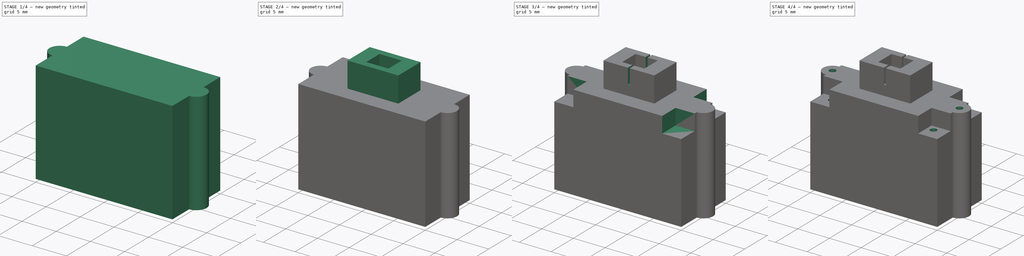
[diagram: build sequence overview — one tinted view per stage of 4, left to right]
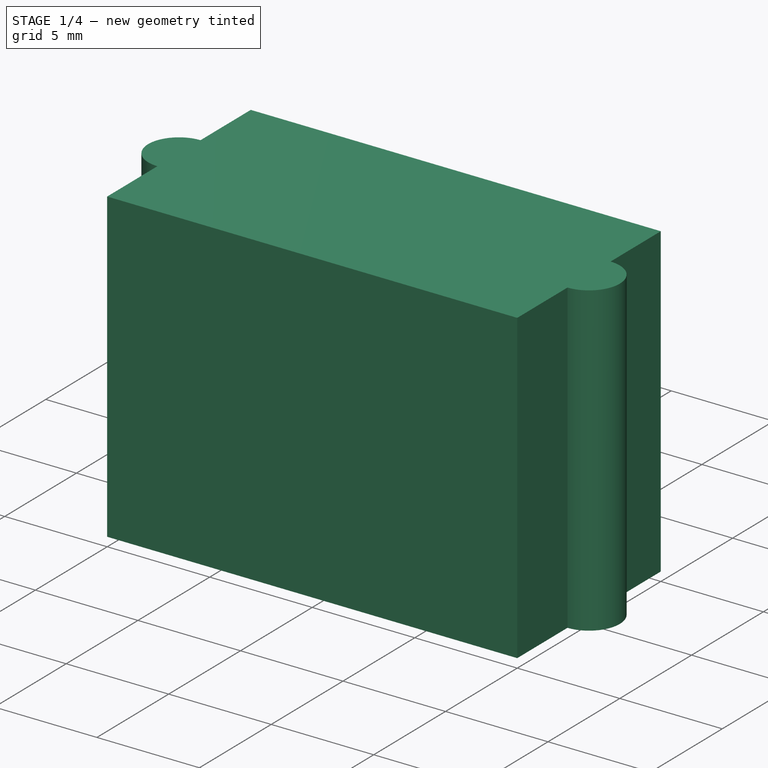
[diagram: stage 1 of 4 — iso view after this stage's code; geometry added in this stage tinted green]
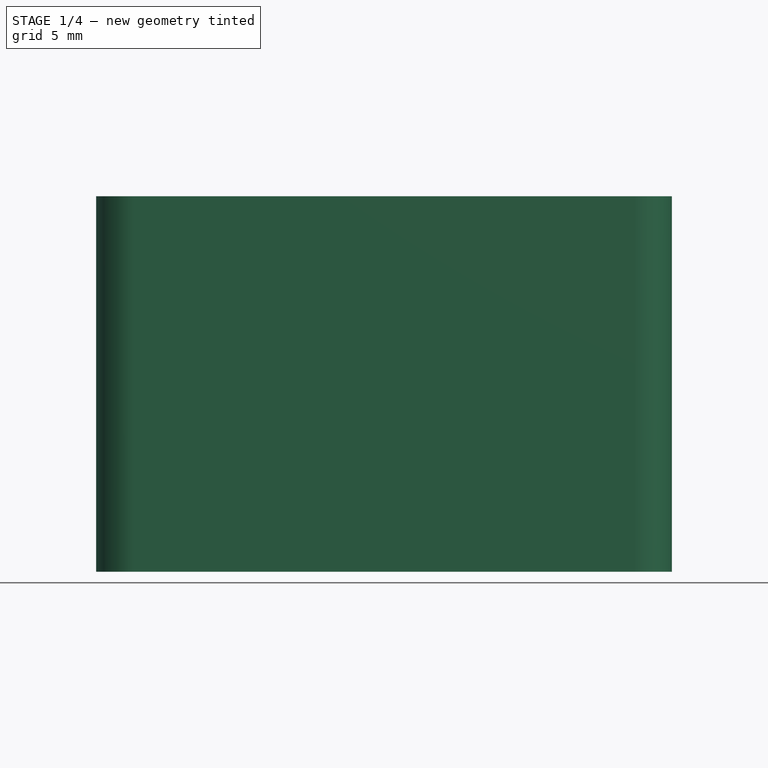
[diagram: stage 1 of 4 — front view after this stage's code; geometry added in this stage tinted green]
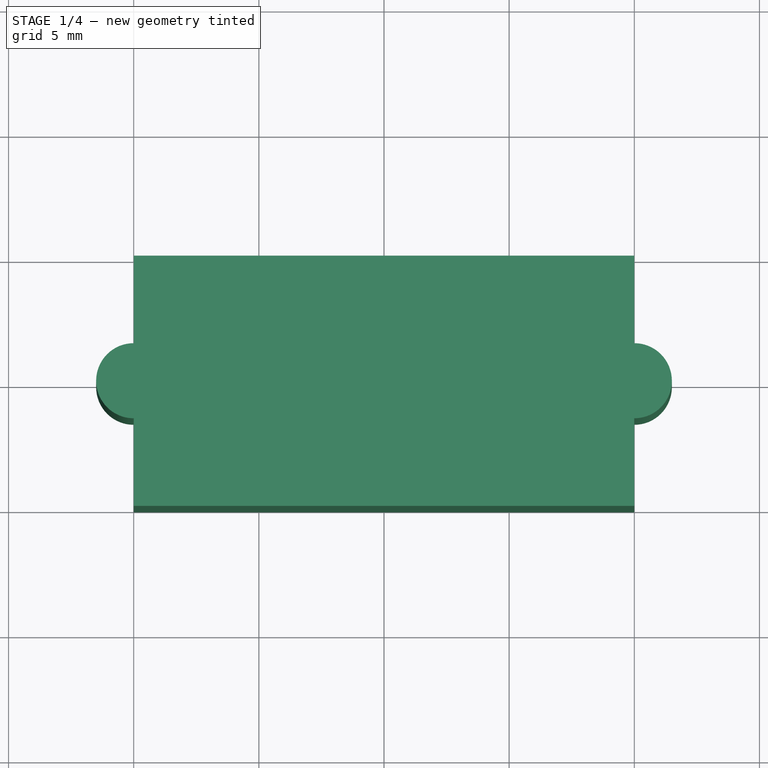
[diagram: stage 1 of 4 — top view after this stage's code; geometry added in this stage tinted green]
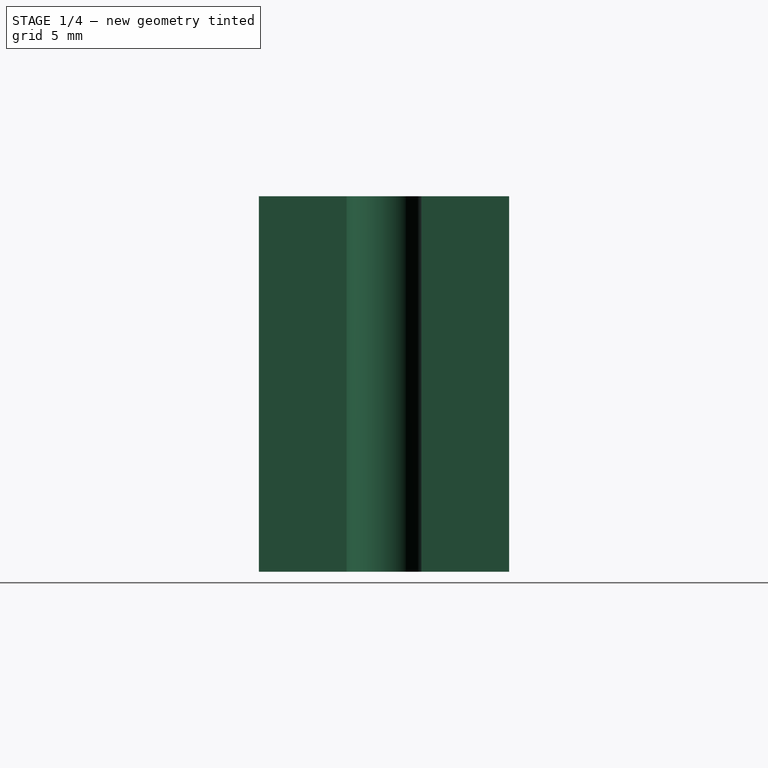
[diagram: stage 1 of 4 — right view after this stage's code; geometry added in this stage tinted green]
FCSTD DOCUMENT  (FreeCAD 0.20R29177 +233 (Git))
Label: shell_chamb12
License: All rights reserved
LicenseURL: http://en.wikipedia.org/wiki/All_rights_reserved
objects: Sketcher::SketchObject×12, PartDesign::Pocket×8, PartDesign::Pad×4, Spreadsheet::Sheet×1, PartDesign::Body×1
note: 37 computed .brp shape members not serialized (recipe doc carries the construction recipe); baked Part::Feature solids carry a one-line shape summary decoded from their .brp

FEATURE [Spreadsheet::Sheet] Spreadsheet001  label="cover_vk_chamb"
  cells = B2=new ; C2=dimensions; D2= of the vacuum; E2=chamber; E3=in; F3=fix piston; B4=chamber ; C4= length; D4(ch_ln)=20; E4(ch_ln_in)=18; G4=shift; H4(fix_sh)=1; C5=height; D5(ch_h)=15; E5(ch_h_in)=14; G5=length; H5(fix_ln)=3; C6= width; D6(ch_w)=10; E6(ch_w_in)=8; G6=width; H6(fix_w)=3; G7=deep; H7(fix_d)=2.5; G8=holl; H8(fix_h)=0.5; B9=plase; C9=height; D9(pl_h)=2; G9=stair; H9(fix_str)=3; G10=str_h; H10(fix_strh)=3.5; D11=d; C12=rod; D12(pl_r)=1; C13=fix; D13(pl_fix)=2; C14=shift; D14(pl_sh)=2.5; B15=nich for pin; C15=d; D15(pin_r)=2; C16=dip; D16(pin_h)=1; F16=pcb foot; G16=rad; H16(pcb_r)=1; G17=h; H17(pcb_h)=1; B18=fix foot; C18=ln; D18(fix_ftln)=8; C19=w; D19(fix_ftw)=5; C20=d blt; D20(fix_ftd)=3; F20=wire hole; G20=rad; H20(wire_r)=0.5; C21=w in; D21(fix_ftw2)=3.5; G21=x; H21(wire_x)=4.5; G22=y; H22(wire_y)=1.5; G23=x1; H23(wire_x1)=4.3
FEATURE [Sketcher::SketchObject] Sketch  label="cover_shll"
  FullyConstrained = false
  MapMode = 5
  Support = -> [XY_Plane]
  expr: Constraints[8] = Spreadsheet001.ch_ln
  expr: Constraints[9] = Spreadsheet001.ch_w
  sketch-geometry (9):
    g0: LineSegment StartX=-10 StartY=5 StartZ=0 EndX=10 EndY=5 EndZ=0
    g1: LineSegment StartX=10 StartY=5 StartZ=0 EndX=10 EndY=1.5 EndZ=0
    g2: LineSegment StartX=10 StartY=-5 StartZ=0 EndX=-10 EndY=-5 EndZ=0
    g3: LineSegment StartX=-10 StartY=-5 StartZ=0 EndX=-10 EndY=-1.5 EndZ=0
    g4: GeomPoint X=10 Y=0 Z=0
    g5: ArcOfCircle CenterX=10 CenterY=0 CenterZ=0 NormalX=0 NormalY=0 NormalZ=1 AngleXU=0 Radius=1.5 StartAngle=4.71239 EndAngle=7.85398
    g6: ArcOfCircle CenterX=-10 CenterY=0 CenterZ=0 NormalX=0 NormalY=0 NormalZ=1 AngleXU=0 Radius=1.5 StartAngle=1.5708 EndAngle=4.71239
    g7: LineSegment StartX=-10 StartY=1.5 StartZ=0 EndX=-10 EndY=5 EndZ=0
    g8: LineSegment StartX=10 StartY=-1.5 StartZ=0 EndX=10 EndY=-5 EndZ=0
  constraints (22):
    c: Coincident(g0,g1)
    c: Coincident(g8,g2)
    c: Coincident(g2,g3)
    c: Coincident(g7,g0)
    c: Horizontal(g0)
    c: Horizontal(g2)
    c: Vertical(g1)
    c: Vertical(g3)
    c: DistanceX(g0,g0) = 20
    c: DistanceY(g8,g1) = 10
    c: Symmetric(g0,g8,g-1)
    c: PointOnObject(g4,g1)
    c: PointOnObject(g4,g-1)
    c: Coincident(g5,g4)
    c: Diameter(g5) = 3
    c: PointOnObject(g6,g3)
    c: PointOnObject(g6,g-1)
    c: Diameter(g6) = 3
    c: Coincident(g3,g6)
    c: Coincident(g7,g6)
    c: Coincident(g1,g5)
    c: Coincident(g8,g5)
FEATURE [PartDesign::Pad] Pad  label="cover"
  Direction = (0,0,1)
  Length = 15
  Length2 = 100
  Profile = -> Sketch
  Type = 0
  expr: Length = Spreadsheet001.ch_h
FEATURE [Sketcher::SketchObject] Sketch001  label="ch_in"
  FullyConstrained = true
  MapMode = 5
  Placement = pos=(0,0,0) rot=(1,0,0;3.14159rad)
  Support = -> [Pad]
  expr: Constraints[8] = Spreadsheet001.ch_ln_in
  expr: Constraints[9] = Spreadsheet001.ch_w_in
  sketch-geometry (4):
    g0: LineSegment StartX=-9 StartY=4 StartZ=0 EndX=9 EndY=4 EndZ=0
    g1: LineSegment StartX=9 StartY=4 StartZ=0 EndX=9 EndY=-4 EndZ=0
    g2: LineSegment StartX=9 StartY=-4 StartZ=0 EndX=-9 EndY=-4 EndZ=0
    g3: LineSegment StartX=-9 StartY=-4 StartZ=0 EndX=-9 EndY=4 EndZ=0
  constraints (11):
    c: Coincident(g0,g1)
    c: Coincident(g1,g2)
    c: Coincident(g2,g3)
    c: Coincident(g3,g0)
    c: Horizontal(g0)
    c: Horizontal(g2)
    c: Vertical(g1)
    c: Vertical(g3)
    c: DistanceX(g0,g0) = 18
    c: DistanceY(g1,g1) = 8
    c: Symmetric(g0,g1,g-1)
FEATURE [PartDesign::Pocket] Pocket  label="chamb_in"
  BaseFeature = -> Pad
  Direction = (0,0,1)
  Length = 14
  Length2 = 5
  Profile = -> Sketch001
  ReferenceAxis = -> Sketch001 [N_Axis]
  Type = 0
  expr: Length = Spreadsheet001.ch_h_in
FEATURE [Sketcher::SketchObject] Sketch002  label="fix_mg"
  FullyConstrained = true
  MapMode = 5
  Placement = pos=(0,0,14) rot=(1,0,0;3.14159rad)
  Support = -> [Pocket]
  expr: Constraints[2] = Spreadsheet001.pl_fix
  expr: Constraints[3] = Spreadsheet001.pl_fix
  expr: Constraints[4] = Spreadsheet001.pl_sh
  expr: Constraints[5] = Spreadsheet001.pl_sh
  sketch-geometry (2):
    g0: Circle CenterX=-2.5 CenterY=0 CenterZ=0 NormalX=0 NormalY=0 NormalZ=1 AngleXU=0 Radius=1
    g1: Circle CenterX=2.5 CenterY=0 CenterZ=0 NormalX=0 NormalY=0 NormalZ=1 AngleXU=0 Radius=1
  constraints (6):
    c: PointOnObject(g0,g-1)
    c: PointOnObject(g1,g-1)
    c: Diameter(g0) = 2
    c: Diameter(g1) = 2
    c: Distance(g-1,g0) = 2.5
    c: Distance(g1,g-1) = 2.5
FEATURE [PartDesign::Pad] Pad001  label="fix"
  BaseFeature = -> Pocket
  Direction = (0,0,-1)
  Length = 2
  Length2 = 10
  Profile = -> Sketch002
  ReferenceAxis = -> Sketch002 [N_Axis]
  Type = 0
  expr: Length = Spreadsheet001.pl_h
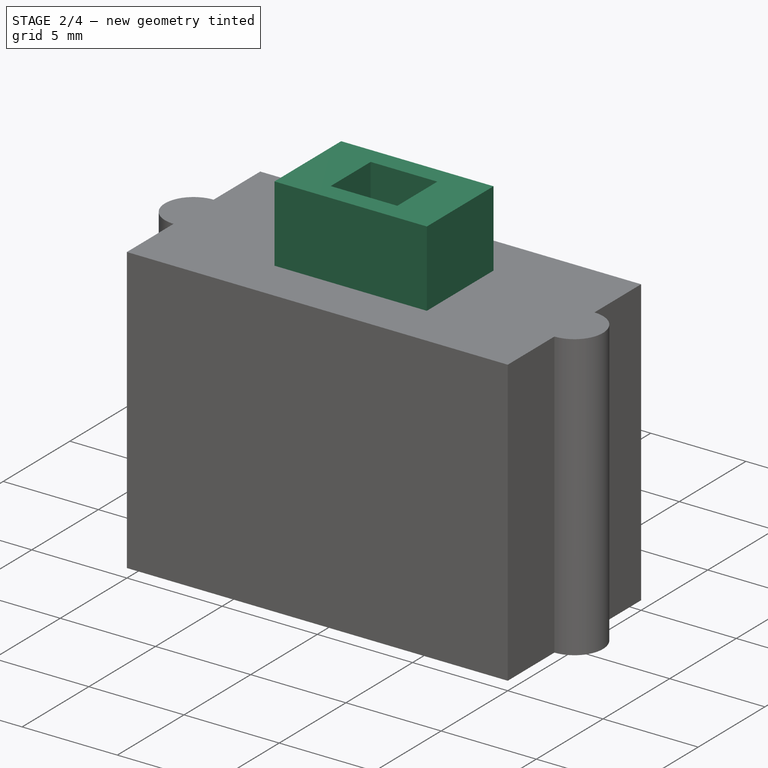
[diagram: stage 2 of 4 — iso view after this stage's code; geometry added in this stage tinted green]
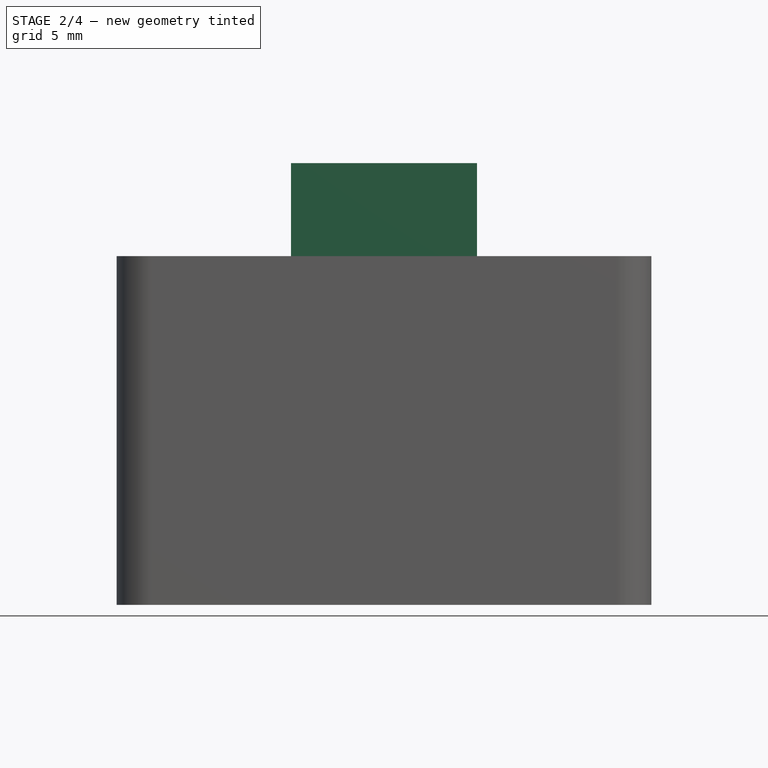
[diagram: stage 2 of 4 — front view after this stage's code; geometry added in this stage tinted green]
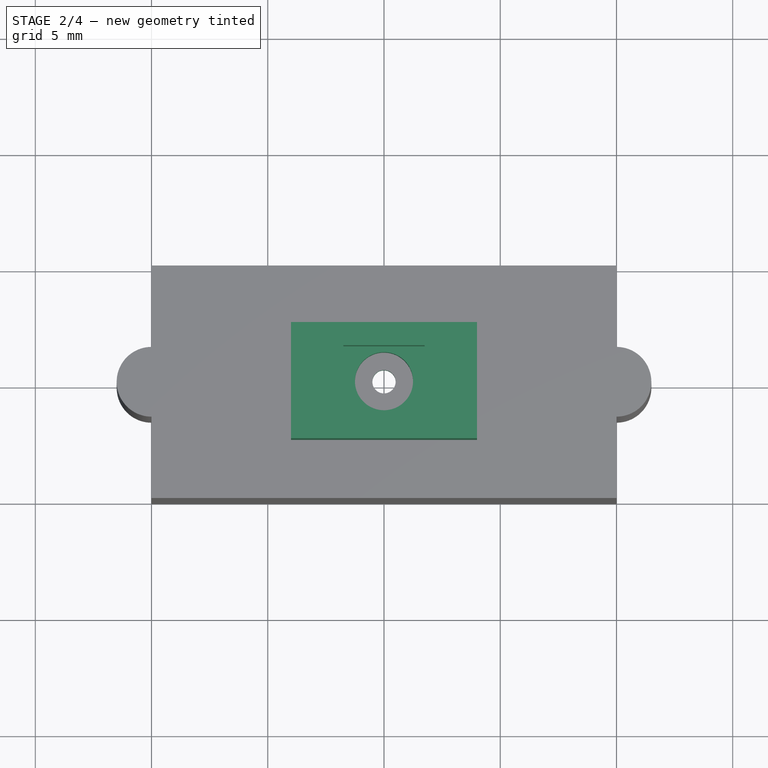
[diagram: stage 2 of 4 — top view after this stage's code; geometry added in this stage tinted green]
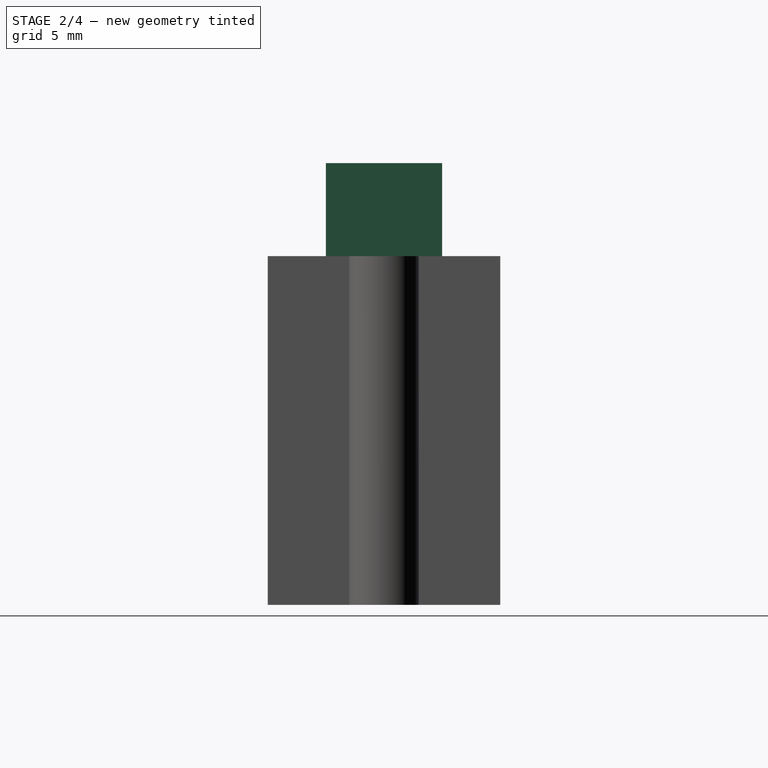
[diagram: stage 2 of 4 — right view after this stage's code; geometry added in this stage tinted green]
FEATURE [Sketcher::SketchObject] Sketch003  label="rod_mg"
  FullyConstrained = true
  MapMode = 5
  Placement = pos=(0,0,15) rot=(0,0,1;0rad)
  Support = -> [Pad001]
  expr: Constraints[1] = Spreadsheet001.pl_r
  sketch-geometry (1):
    g0: Circle CenterX=0 CenterY=0 CenterZ=0 NormalX=0 NormalY=0 NormalZ=1 AngleXU=0 Radius=0.5
  constraints (2):
    c: Coincident(g0,g-1)
    c: Diameter(g0) = 1
FEATURE [PartDesign::Pocket] Pocket001  label="rod"
  BaseFeature = -> Pad001
  Direction = (0,0,-1)
  Length = 5
  Length2 = 5
  Profile = -> Sketch003
  ReferenceAxis = -> Sketch003 [N_Axis]
  Type = 1
FEATURE [Sketcher::SketchObject] Sketch004  label="foot01"
  FullyConstrained = true
  MapMode = 5
  Placement = pos=(0,0,15) rot=(0,0,1;0rad)
  Support = -> [Pocket001]
  expr: Constraints[10] = Spreadsheet001.fix_ftw
  expr: Constraints[11] = Spreadsheet001.fix_ftln
  expr: Constraints[1] = Spreadsheet001.fix_d
  sketch-geometry (5):
    g0: Circle CenterX=0 CenterY=0 CenterZ=0 NormalX=0 NormalY=0 NormalZ=1 AngleXU=0 Radius=1.25
    g1: LineSegment StartX=-4 StartY=2.5 StartZ=0 EndX=4 EndY=2.5 EndZ=0
    g2: LineSegment StartX=4 StartY=2.5 StartZ=0 EndX=4 EndY=-2.5 EndZ=0
    g3: LineSegment StartX=4 StartY=-2.5 StartZ=0 EndX=-4 EndY=-2.5 EndZ=0
    g4: LineSegment StartX=-4 StartY=-2.5 StartZ=0 EndX=-4 EndY=2.5 EndZ=0
  constraints (13):
    c: Coincident(g0,g-1)
    c: Diameter(g0) = 2.5
    c: Coincident(g1,g2)
    c: Coincident(g2,g3)
    c: Coincident(g3,g4)
    c: Coincident(g4,g1)
    c: Horizontal(g1)
    c: Horizontal(g3)
    c: Vertical(g2)
    c: Vertical(g4)
    c: DistanceY(g2,g2) = 5
    c: DistanceX(g1,g1) = 8
    c: Symmetric(g1,g2,g0)
FEATURE [PartDesign::Pad] Pad002  label="foot_br"
  BaseFeature = -> Pocket001
  Direction = (0,0,1)
  Length = 4
  Length2 = 10
  Profile = -> Sketch004
  ReferenceAxis = -> Sketch004 [N_Axis]
  Type = 0
FEATURE [Sketcher::SketchObject] Sketch005  label="ftnich"
  FullyConstrained = true
  MapMode = 5
  Placement = pos=(0,0,19) rot=(0,0,1;0rad)
  Support = -> [Pad002]
  expr: Constraints[8] = Spreadsheet001.fix_ftw2
  expr: Constraints[9] = Spreadsheet001.fix_ftd
  sketch-geometry (4):
    g0: LineSegment StartX=-1.75 StartY=1.5 StartZ=0 EndX=1.75 EndY=1.5 EndZ=0
    g1: LineSegment StartX=1.75 StartY=1.5 StartZ=0 EndX=1.75 EndY=-1.5 EndZ=0
    g2: LineSegment StartX=1.75 StartY=-1.5 StartZ=0 EndX=-1.75 EndY=-1.5 EndZ=0
    g3: LineSegment StartX=-1.75 StartY=-1.5 StartZ=0 EndX=-1.75 EndY=1.5 EndZ=0
  constraints (11):
    c: Coincident(g0,g1)
    c: Coincident(g1,g2)
    c: Coincident(g2,g3)
    c: Coincident(g3,g0)
    c: Horizontal(g0)
    c: Horizontal(g2)
    c: Vertical(g1)
    c: Vertical(g3)
    c: DistanceX(g0,g0) = 3.5
    c: DistanceY(g1,g1) = 3
    c: Symmetric(g0,g1,g-1)
FEATURE [PartDesign::Pocket] Pocket002  label="foot_nich"
  BaseFeature = -> Pad002
  Direction = (0,0,-1)
  Length = 2.5
  Length2 = 5
  Profile = -> Sketch005
  ReferenceAxis = -> Sketch005 [N_Axis]
  Type = 0
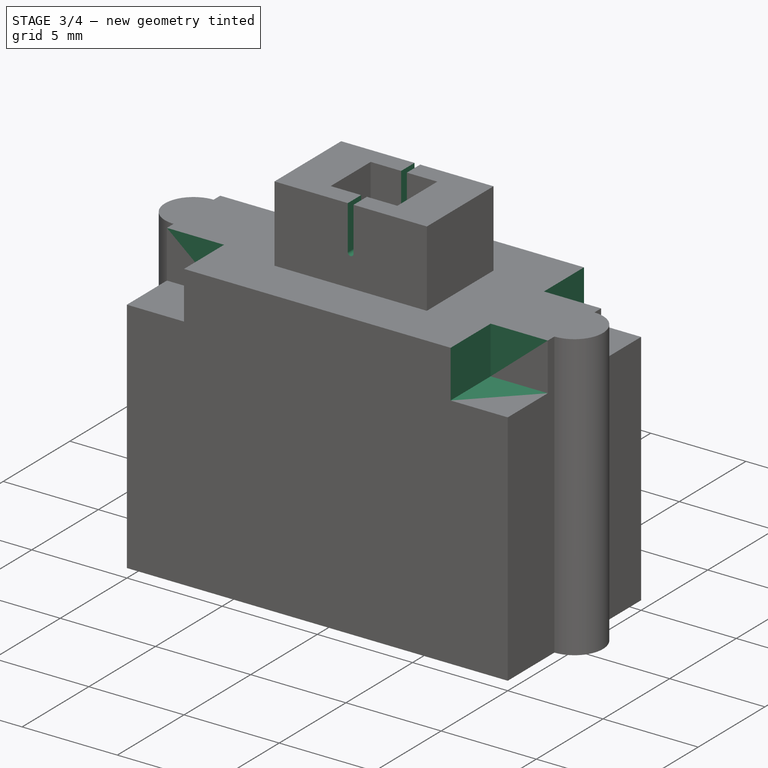
[diagram: stage 3 of 4 — iso view after this stage's code; geometry added in this stage tinted green]
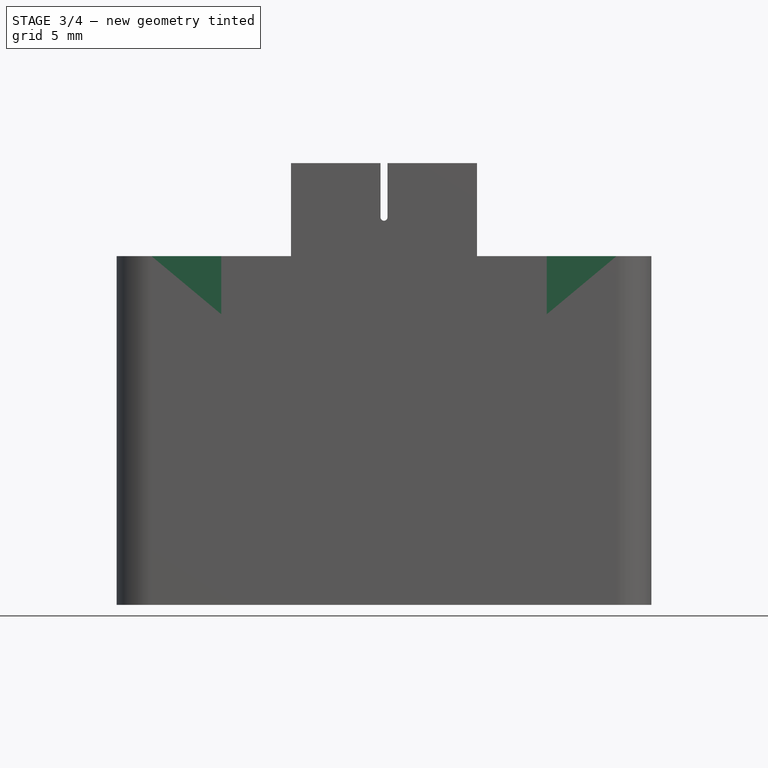
[diagram: stage 3 of 4 — front view after this stage's code; geometry added in this stage tinted green]
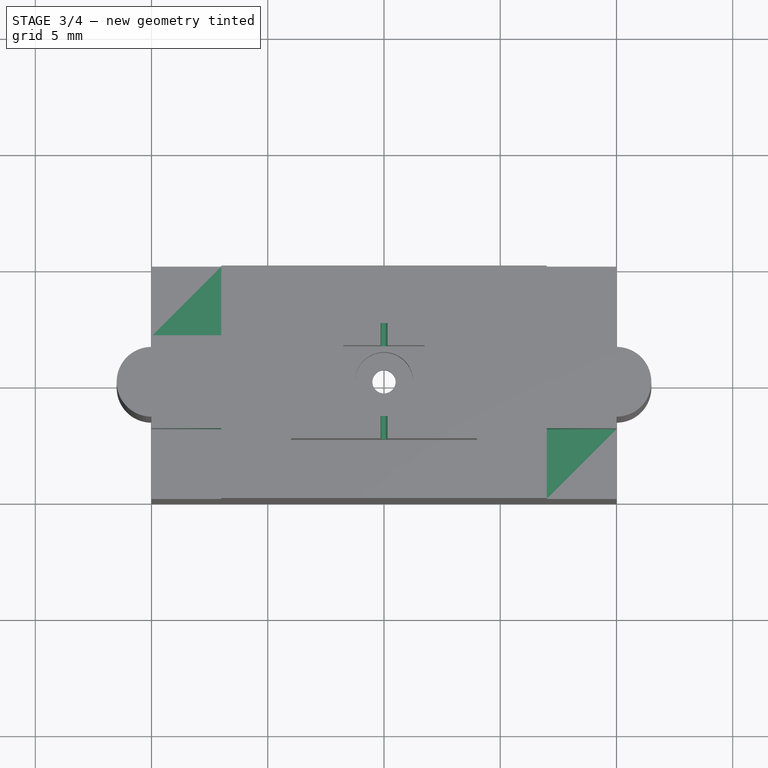
[diagram: stage 3 of 4 — top view after this stage's code; geometry added in this stage tinted green]
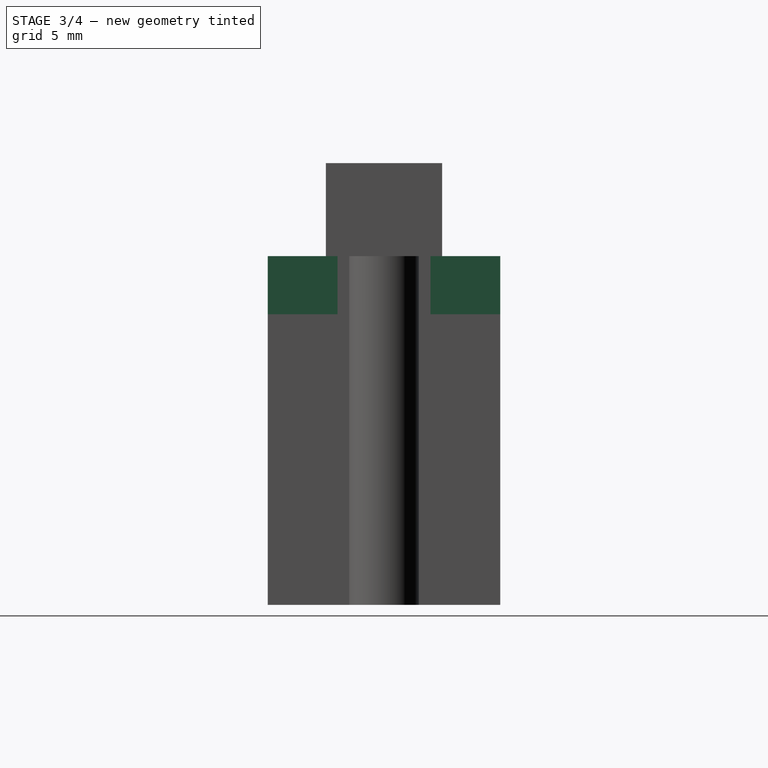
[diagram: stage 3 of 4 — right view after this stage's code; geometry added in this stage tinted green]
FEATURE [Sketcher::SketchObject] Sketch006  label="spr"
  FullyConstrained = false
  MapMode = 5
  Placement = pos=(0,-2.5,0) rot=(1,0,0;1.5708rad)
  Support = -> [Pocket002]
  sketch-geometry (4):
    g0: ArcOfCircle CenterX=0 CenterY=19.023 CenterZ=0 NormalX=0 NormalY=0 NormalZ=1 AngleXU=0 Radius=0.15 StartAngle=7.8e-15 EndAngle=3.14159
    g1: ArcOfCircle CenterX=0 CenterY=16.6736 CenterZ=0 NormalX=0 NormalY=0 NormalZ=1 AngleXU=0 Radius=0.15 StartAngle=3.14159 EndAngle=6.28319
    g2: LineSegment StartX=-0.15 StartY=19.023 StartZ=0 EndX=-0.15 EndY=16.6736 EndZ=0
    g3: LineSegment StartX=0.15 StartY=16.6736 StartZ=0 EndX=0.15 EndY=19.023 EndZ=0
  constraints (8):
    c: Tangent(g0,g2) = -1.5708
    c: Tangent(g2,g1) = -1.5708
    c: Tangent(g1,g3) = -1.5708
    c: Tangent(g3,g0) = -1.5708
    c: Equal(g0,g1)
    c: PointOnObject(g0,g-2)
    c: Distance(g1,g1) = 0.3
    c: PointOnObject(g1,g-2)
FEATURE [PartDesign::Pocket] Pocket003  label="spring_fix"
  BaseFeature = -> Pocket002
  Direction = (0,1,-2e-16)
  Length = 5
  Length2 = 5
  Profile = -> Sketch006
  ReferenceAxis = -> Sketch006 [N_Axis]
  Type = 1
FEATURE [Sketcher::SketchObject] Sketch007
  ExternalGeometry = -> [Pocket003]
  FullyConstrained = true
  MapMode = 5
  Placement = pos=(0,0,14) rot=(1,0,0;3.14159rad)
  Support = -> [Pocket003]
  expr: Constraints[10] = Spreadsheet001.fix_strh
  expr: Constraints[21] = Spreadsheet001.fix_strh
  sketch-geometry (8):
    g0: LineSegment StartX=9 StartY=4 StartZ=0 EndX=5.5 EndY=4 EndZ=0
    g1: LineSegment StartX=5.5 StartY=4 StartZ=0 EndX=5.5 EndY=-4 EndZ=0
    g2: LineSegment StartX=5.5 StartY=-4 StartZ=0 EndX=9 EndY=-4 EndZ=0
    g3: LineSegment StartX=9 StartY=-4 StartZ=0 EndX=9 EndY=4 EndZ=0
    g4: LineSegment StartX=-9 StartY=4 StartZ=0 EndX=-5.5 EndY=4 EndZ=0
    g5: LineSegment StartX=-5.5 StartY=4 StartZ=0 EndX=-5.5 EndY=-4 EndZ=0
    g6: LineSegment StartX=-5.5 StartY=-4 StartZ=0 EndX=-9 EndY=-4 EndZ=0
    g7: LineSegment StartX=-9 StartY=-4 StartZ=0 EndX=-9 EndY=4 EndZ=0
  constraints (22):
    c: Coincident(g0,g1)
    c: Coincident(g1,g2)
    c: Coincident(g2,g3)
    c: Coincident(g3,g0)
    c: Horizontal(g0)
    c: Horizontal(g2)
    c: Vertical(g1)
    c: Vertical(g3)
    c: Coincident(g0,g-4)
    c: PointOnObject(g1,g-6)
    c: DistanceX(g0,g0) = 3.5
    c: Coincident(g4,g5)
    c: Coincident(g5,g6)
    c: Coincident(g6,g7)
    c: Coincident(g7,g4)
    c: Horizontal(g4)
    c: Horizontal(g6)
    c: Vertical(g5)
    c: Vertical(g7)
    c: Coincident(g4,g-5)
    c: PointOnObject(g5,g-6)
    c: DistanceX(g4,g4) = 3.5
FEATURE [PartDesign::Pad] Pad003
  BaseFeature = -> Pocket003
  Direction = (0,0,-1)
  Length = 3
  Length2 = 10
  Profile = -> Sketch007
  ReferenceAxis = -> Sketch007 [N_Axis]
  Type = 0
  expr: Length = Spreadsheet001.fix_str
FEATURE [Sketcher::SketchObject] Sketch008  label="pist"
  ExternalGeometry = -> [Pad003]
  FullyConstrained = true
  MapMode = 5
  Placement = pos=(0,0,15) rot=(0,0,1;0rad)
  Support = -> [Pad003]
  expr: Constraints[36] = Spreadsheet001.fix_ln
  expr: Constraints[37] = Spreadsheet001.fix_ln
  expr: Constraints[38] = Spreadsheet001.fix_w
  expr: Constraints[39] = Spreadsheet001.fix_w
  sketch-geometry (16):
    g0: LineSegment StartX=10 StartY=-5 StartZ=0 EndX=7 EndY=-5 EndZ=0
    g1: LineSegment StartX=7 StartY=-5 StartZ=0 EndX=7 EndY=-2 EndZ=0
    g2: LineSegment StartX=7 StartY=-2 StartZ=0 EndX=10 EndY=-2 EndZ=0
    g3: LineSegment StartX=10 StartY=-2 StartZ=0 EndX=10 EndY=-5 EndZ=0
    g4: LineSegment StartX=10 StartY=5 StartZ=0 EndX=7 EndY=5 EndZ=0
    g5: LineSegment StartX=7 StartY=5 StartZ=0 EndX=7 EndY=2 EndZ=0
    g6: LineSegment StartX=7 StartY=2 StartZ=0 EndX=10 EndY=2 EndZ=0
    g7: LineSegment StartX=10 StartY=2 StartZ=0 EndX=10 EndY=5 EndZ=0
    g8: LineSegment StartX=-10 StartY=-5 StartZ=0 EndX=-7 EndY=-5 EndZ=0
    g9: LineSegment StartX=-7 StartY=-5 StartZ=0 EndX=-7 EndY=-2 EndZ=0
    g10: LineSegment StartX=-7 StartY=-2 StartZ=0 EndX=-10 EndY=-2 EndZ=0
    g11: LineSegment StartX=-10 StartY=-2 StartZ=0 EndX=-10 EndY=-5 EndZ=0
    g12: LineSegment StartX=-10 StartY=5 StartZ=0 EndX=-7 EndY=5 EndZ=0
    g13: LineSegment StartX=-7 StartY=5 StartZ=0 EndX=-7 EndY=2 EndZ=0
    g14: LineSegment StartX=-7 StartY=2 StartZ=0 EndX=-10 EndY=2 EndZ=0
    g15: LineSegment StartX=-10 StartY=2 StartZ=0 EndX=-10 EndY=5 EndZ=0
  constraints (44):
    c: Coincident(g0,g1)
    c: Coincident(g1,g2)
    c: Coincident(g2,g3)
    c: Coincident(g3,g0)
    c: Horizontal(g0)
    c: Horizontal(g2)
    c: Vertical(g1)
    c: Vertical(g3)
    c: Coincident(g0,g-4)
    c: Coincident(g4,g5)
    c: Coincident(g5,g6)
    c: Coincident(g6,g7)
    c: Coincident(g7,g4)
    c: Horizontal(g4)
    c: Horizontal(g6)
    c: Vertical(g5)
    c: Vertical(g7)
    c: Coincident(g4,g-3)
    c: Coincident(g8,g9)
    c: Coincident(g9,g10)
    c: Coincident(g10,g11)
    c: Coincident(g11,g8)
    c: Horizontal(g8)
    c: Horizontal(g10)
    c: Vertical(g9)
    c: Vertical(g11)
    c: Coincident(g8,g-4)
    c: Coincident(g12,g13)
    c: Coincident(g13,g14)
    c: Coincident(g14,g15)
    c: Coincident(g15,g12)
    c: Horizontal(g12)
    c: Horizontal(g14)
    c: Vertical(g13)
    c: Vertical(g15)
    c: Coincident(g12,g-3)
    c: DistanceX(g2,g2) = 3
    c: DistanceX(g14,g14) = 3
    c: DistanceY(g1,g1) = 3
    c: DistanceY(g13,g13) = 3
    c: Equal(g2,g6)
    c: Equal(g13,g5)
    c: Equal(g1,g9)
    c: Equal(g14,g10)
FEATURE [PartDesign::Pocket] Pocket004  label="piston"
  BaseFeature = -> Pad003
  Direction = (0,0,-1)
  Length = 2.5
  Length2 = 5
  Profile = -> Sketch008
  ReferenceAxis = -> Sketch008 [N_Axis]
  Type = 0
  expr: Length = Spreadsheet001.fix_d
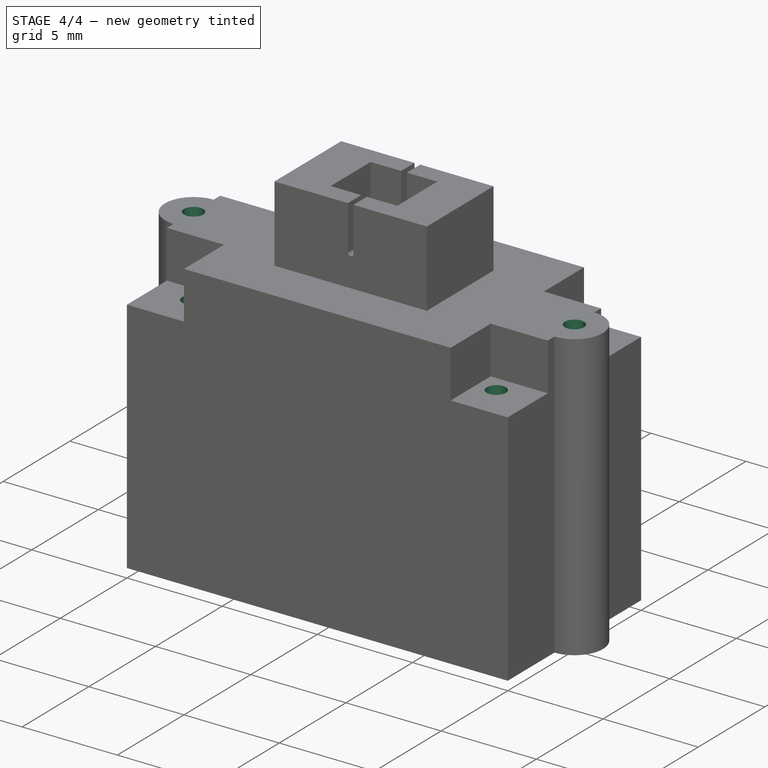
[diagram: stage 4 of 4 — iso view after this stage's code; geometry added in this stage tinted green]
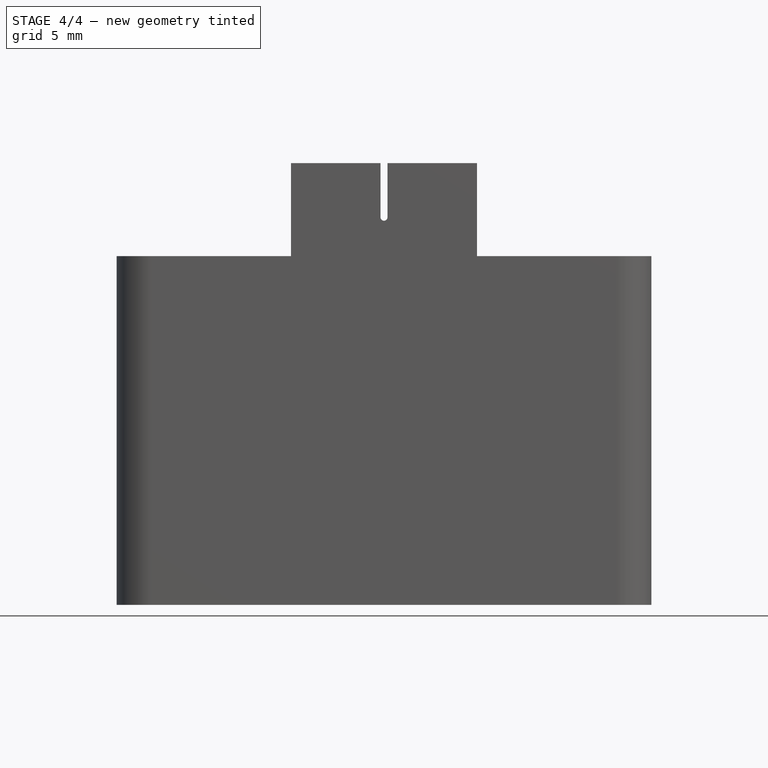
[diagram: stage 4 of 4 — front view after this stage's code; geometry added in this stage tinted green]
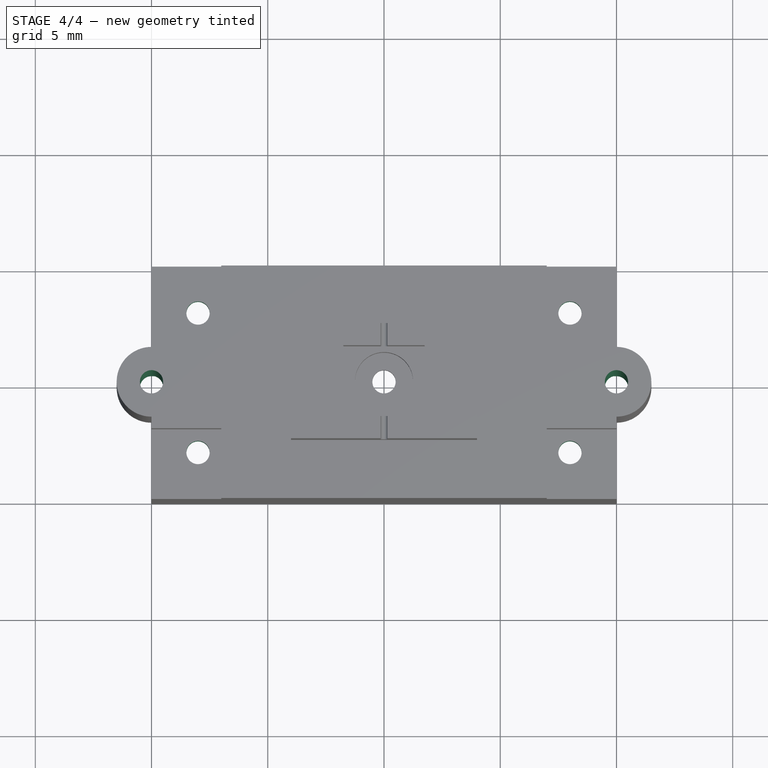
[diagram: stage 4 of 4 — top view after this stage's code; geometry added in this stage tinted green]
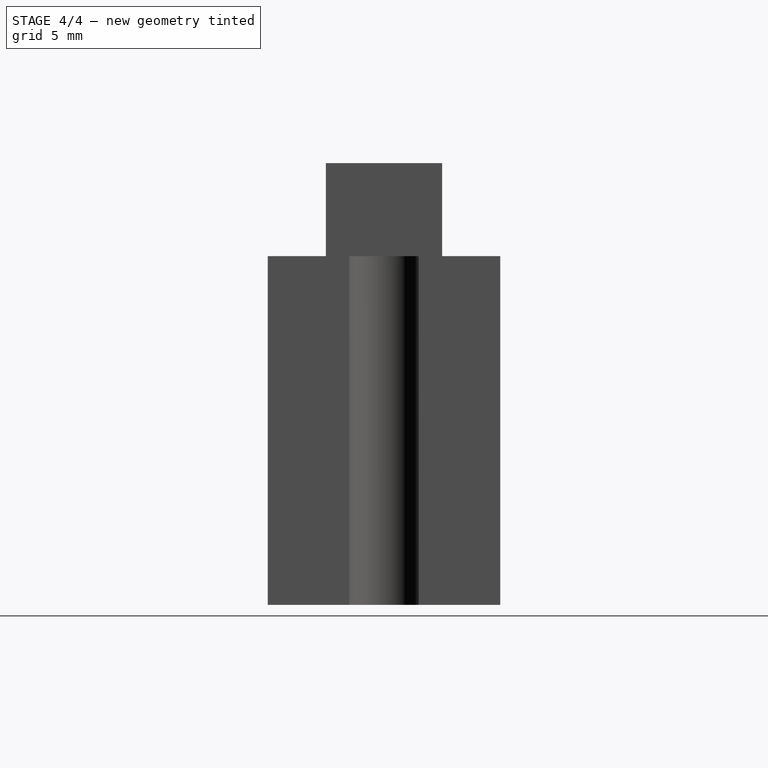
[diagram: stage 4 of 4 — right view after this stage's code; geometry added in this stage tinted green]
FEATURE [Sketcher::SketchObject] Sketch010  label="hlfix"
  FullyConstrained = false
  MapMode = 5
  Placement = pos=(0,0,12.5) rot=(0,0,1;0rad)
  sketch-geometry (4):
    g0: Circle CenterX=8 CenterY=-3 CenterZ=0 NormalX=0 NormalY=0 NormalZ=1 AngleXU=0 Radius=0.5
    g1: Circle CenterX=8 CenterY=3 CenterZ=0 NormalX=0 NormalY=0 NormalZ=1 AngleXU=0 Radius=0.5
    g2: Circle CenterX=-8 CenterY=3 CenterZ=0 NormalX=0 NormalY=0 NormalZ=1 AngleXU=0 Radius=0.5
    g3: Circle CenterX=-8 CenterY=-3 CenterZ=0 NormalX=0 NormalY=0 NormalZ=1 AngleXU=0 Radius=0.5
  constraints (6):
    c: Diameter(g1) = 1
    c: Diameter(g0) = 1
    c: Diameter(g2) = 1
    c: Diameter(g3) = 1
    c: Symmetric(g0,g2,g-1)
    c: Symmetric(g3,g1,g-1)
FEATURE [PartDesign::Pocket] Pocket005  label="holefix"
  BaseFeature = -> Pocket004
  Direction = (0,0,-1)
  Length = 5
  Length2 = 5
  Profile = -> Sketch010
  ReferenceAxis = -> Sketch010 [N_Axis]
  Type = 1
FEATURE [Sketcher::SketchObject] Sketch011  label="vcl"
  ExternalGeometry = -> [Pocket005]
  FullyConstrained = true
  MapMode = 5
  Placement = pos=(0,0,15) rot=(0,0,1;0rad)
  Support = -> [Pocket005]
  sketch-geometry (2):
    g0: Circle CenterX=-10 CenterY=0 CenterZ=0 NormalX=0 NormalY=0 NormalZ=1 AngleXU=0 Radius=0.5
    g1: Circle CenterX=10 CenterY=0 CenterZ=0 NormalX=0 NormalY=0 NormalZ=1 AngleXU=0 Radius=0.5
  constraints (6):
    c: PointOnObject(g0,g-1)
    c: PointOnObject(g1,g-1)
    c: Diameter(g0) = 1
    c: Diameter(g1) = 1
    c: Distance(g-1,g0) = 10
    c: Distance(g1,g-1) = 10
FEATURE [PartDesign::Pocket] Pocket006  label="vaccln"
  BaseFeature = -> Pocket005
  Direction = (0,0,-1)
  Length = 5
  Length2 = 5
  Profile = -> Sketch011
  ReferenceAxis = -> Sketch011 [N_Axis]
  Type = 1
FEATURE [Sketcher::SketchObject] Sketch012  label="vcm"
  ExternalGeometry = -> [Pocket006]
  FullyConstrained = false
  MapMode = 5
  Placement = pos=(0,0,0) rot=(1,0,0;3.14159rad)
  Support = -> [Pocket006]
  sketch-geometry (8):
    g0: LineSegment StartX=-9.99659 StartY=0.499988 StartZ=0 EndX=-8.93785 EndY=0.499988 EndZ=0
    g1: LineSegment StartX=-8.93785 StartY=0.499988 StartZ=0 EndX=-8.93785 EndY=-0.500012 EndZ=0
    g2: LineSegment StartX=-8.93785 StartY=-0.500012 StartZ=0 EndX=-9.99659 EndY=-0.500012 EndZ=0
    g3: LineSegment StartX=-9.99659 StartY=-0.500012 StartZ=0 EndX=-9.99659 EndY=0.499988 EndZ=0
    g4: LineSegment StartX=9.97423 StartY=0.499336 StartZ=0 EndX=8.85792 EndY=0.499336 EndZ=0
    g5: LineSegment StartX=8.85792 StartY=0.499336 StartZ=0 EndX=8.85792 EndY=-0.500664 EndZ=0
    g6: LineSegment StartX=8.85792 StartY=-0.500664 StartZ=0 EndX=9.97423 EndY=-0.500664 EndZ=0
    g7: LineSegment StartX=9.97423 StartY=-0.500664 StartZ=0 EndX=9.97423 EndY=0.499336 EndZ=0
  constraints (20):
    c: Coincident(g0,g1)
    c: Coincident(g1,g2)
    c: Coincident(g2,g3)
    c: Coincident(g3,g0)
    c: Horizontal(g0)
    c: Horizontal(g2)
    c: Vertical(g1)
    c: Vertical(g3)
    c: PointOnObject(g0,g-3)
    c: Coincident(g4,g5)
    c: Coincident(g5,g6)
    c: Coincident(g6,g7)
    c: Coincident(g7,g4)
    c: Horizontal(g4)
    c: Horizontal(g6)
    c: Vertical(g5)
    c: Vertical(g7)
    c: PointOnObject(g4,g-4)
    c: DistanceY(g5,g5) = 1
    c: DistanceY(g1,g1) = 1
FEATURE [PartDesign::Pocket] Pocket007  label="btmvcu"
  BaseFeature = -> Pocket006
  Direction = (0,0,1)
  Length = 1
  Length2 = 5
  Profile = -> Sketch012
  ReferenceAxis = -> Sketch012 [N_Axis]
  Type = 0
FEATURE [PartDesign::Body] Body  label="chamb"
  Group = -> [Sketch,Pad,Sketch001,Pocket,Sketch002,Pad001,Sketch003,Pocket001,Sketch004,Pad002,Sketch005,Pocket002,Sketch006,Pocket003,Sketch007,Pad003,Sketch008,Pocket004,Sketch010,Pocket005,Sketch011,Pocket006,Sketch012,Pocket007]
  Origin = -> Origin
  Tip = -> Pocket007
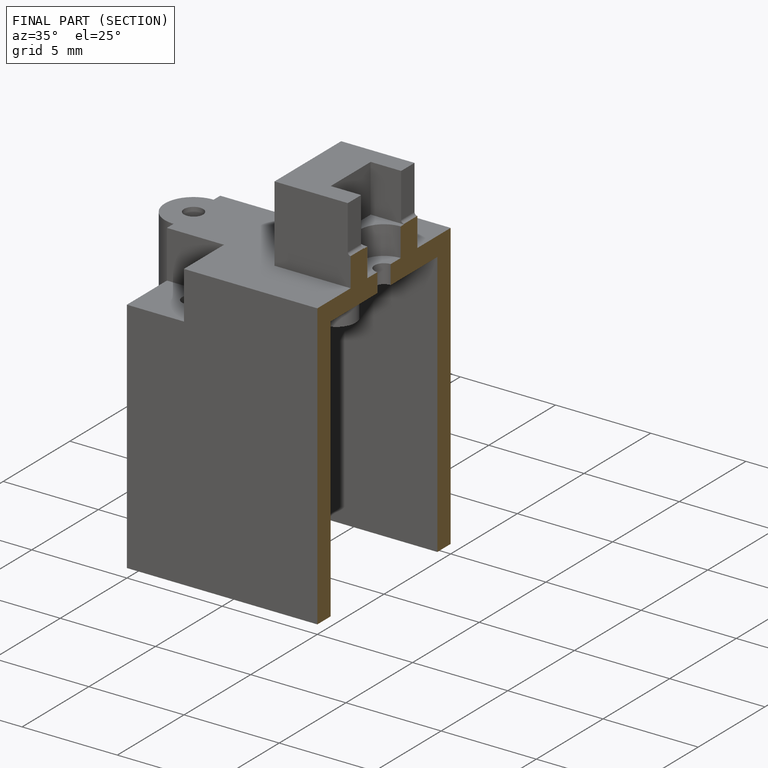
[diagram: finished part — half-section view (interior)]
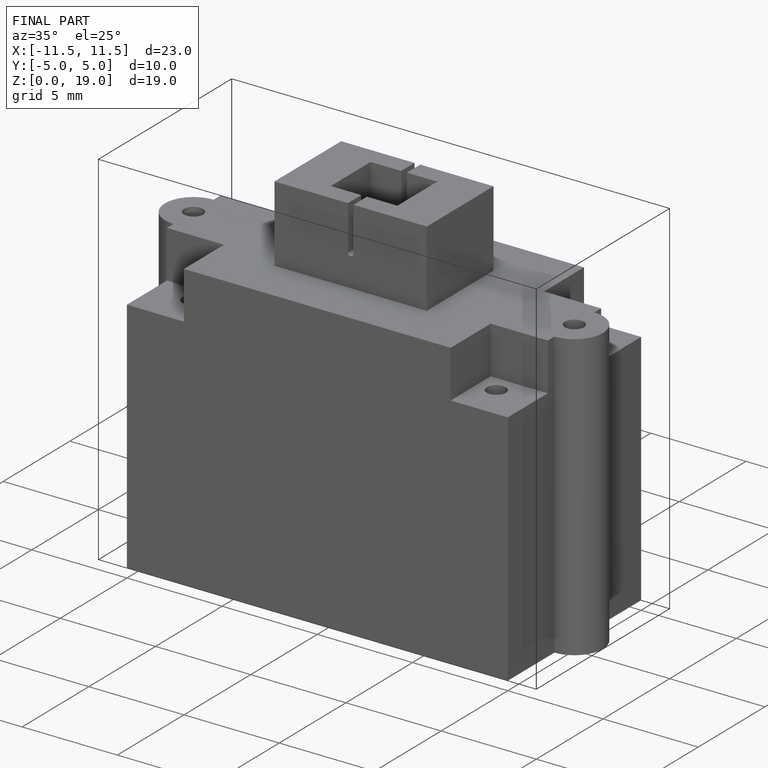
[diagram: finished part — iso view with bounding-box wireframe]
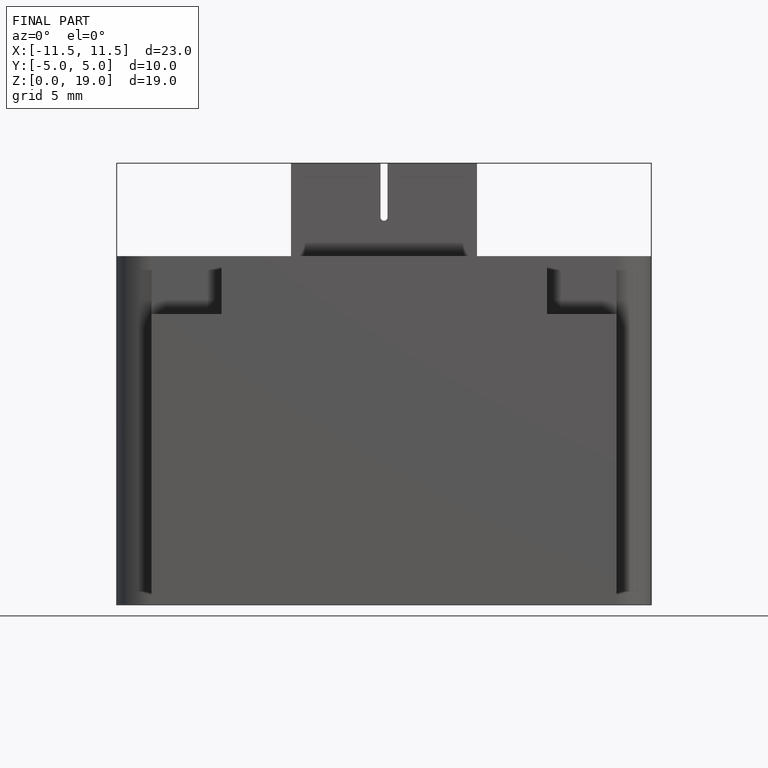
[diagram: finished part — front view with bounding-box wireframe]
